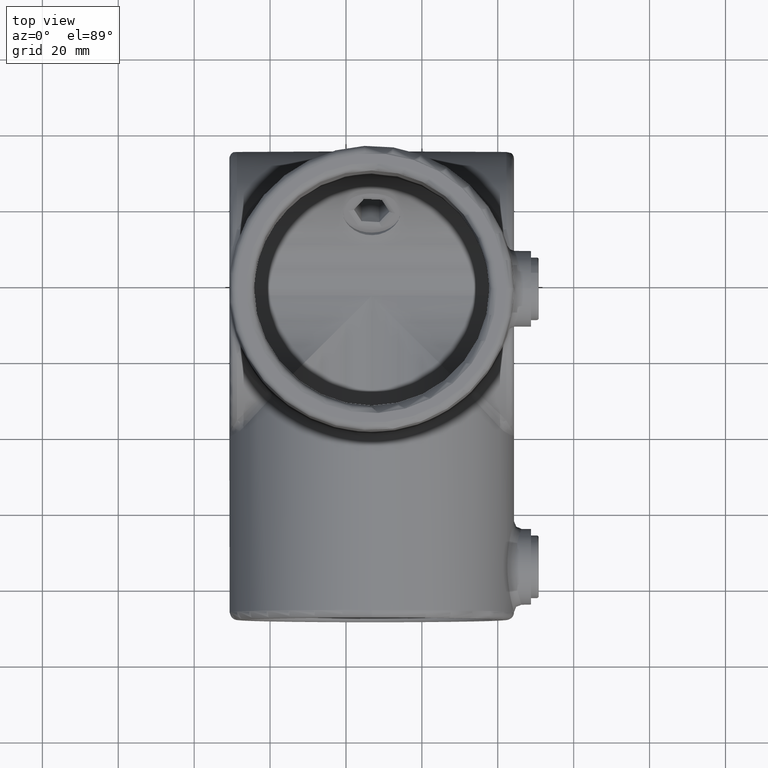
[diagram: clean part render]
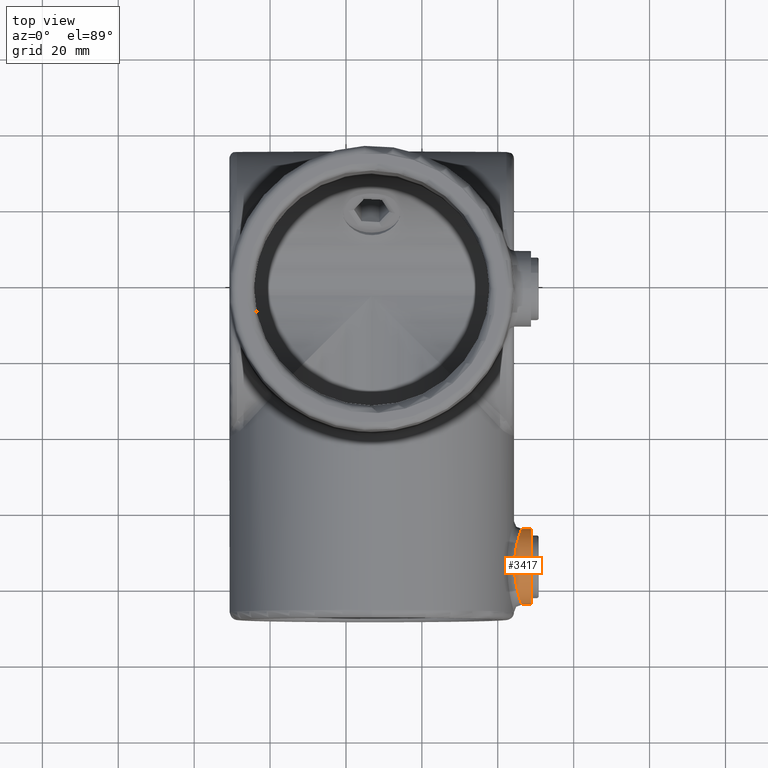
[diagram: same view with one face highlighted and labeled with its STEP entity id]
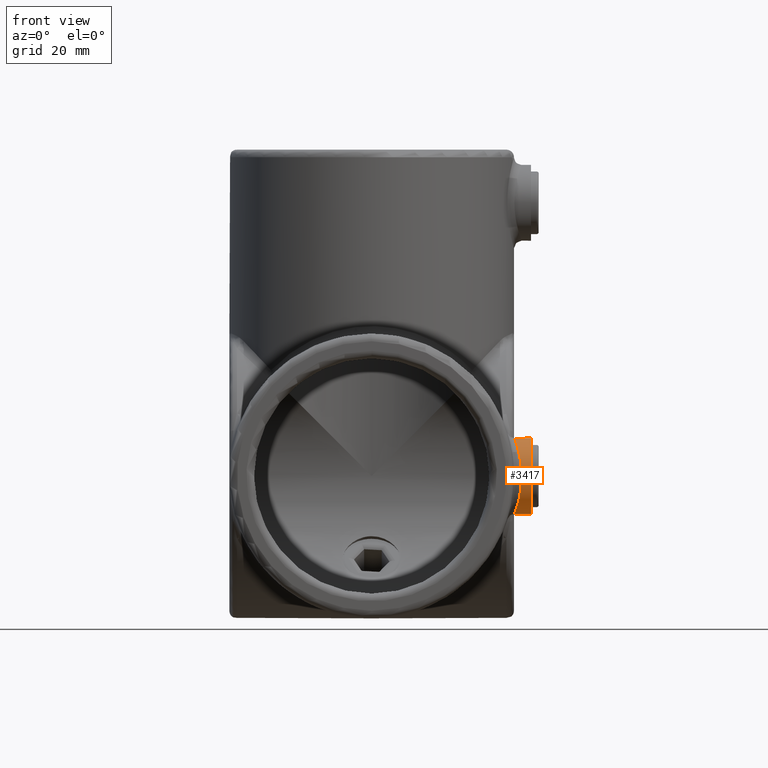
[diagram: same view with one face highlighted and labeled with its STEP entity id]
A machine part, top view. The second image highlights one B-rep face of the part: STEP entity #3417.
A second angle (front view) of the same face is appended — the face is thin or edge-on in the first view.
In plain terms, the highlighted cylindrical surface (bore or boss wall) has radius 10 mm, axis along (-1, -0, -0).
Its self-contained STEP definition (entity closure, byte-faithful):
#63 = CARTESIAN_POINT ( 'NONE',  ( 37.65800378888405930, -70.68680354598365057, 9.935613272041843302 ) ) ;
#121 = CARTESIAN_POINT ( 'NONE',  ( 37.95850891990635745, -67.85615282737181531, 9.106855317723537624 ) ) ;
#161 = CARTESIAN_POINT ( 'NONE',  ( 37.87145886979997300, -75.54806633336220045, -9.355169010651566808 ) ) ;
#216 = CARTESIAN_POINT ( 'NONE',  ( 38.33493186078339221, -78.10799187908575902, -7.944425184108400373 ) ) ;
#694 = CARTESIAN_POINT ( 'NONE',  ( 38.00413709323849787, -67.54507831268904283, -8.976602555335890798 ) ) ;
#963 = CARTESIAN_POINT ( 'NONE',  ( 38.00665111926201689, -67.56112813184304855, 8.966828442534124477 ) ) ;
#1011 = CARTESIAN_POINT ( 'NONE',  ( 39.31528231635761728, -81.48410813540054676, 3.237535629497500622 ) ) ;
#1063 = CARTESIAN_POINT ( 'NONE',  ( 39.04058883765220855, -80.65822309872656604, -5.014154580398188621 ) ) ;
#1346 = CARTESIAN_POINT ( 'NONE',  ( 39.50003877393437790, -82.00010635906116363, 0.3251685596257919419 ) ) ;
#1399 = CARTESIAN_POINT ( 'NONE',  ( 38.69951685119757201, -79.53212531973416333, 6.610163659216975240 ) ) ;
#1432 = CARTESIAN_POINT ( 'NONE',  ( 37.63309713536744283, -72.00000000000000000, -10.00000000000000888 ) ) ;
#1599 = CARTESIAN_POINT ( 'NONE',  ( 37.68308531014445606, -73.64840928387702945, -9.868639242610592888 ) ) ;
#1872 = CARTESIAN_POINT ( 'NONE',  ( 37.73139460903001208, -74.29069149121947646, -9.739611191419324854 ) ) ;
#2226 = CARTESIAN_POINT ( 'NONE',  ( 37.66419712150722887, -73.31708196027251745, 9.918415470324164929 ) ) ;
#2281 = CARTESIAN_POINT ( 'NONE',  ( 39.45260788451472678, -81.86941713962887945, 1.644073465402619894 ) ) ;
#2337 = CARTESIAN_POINT ( 'NONE',  ( 37.75568148744676478, -69.38467477158201291, 9.674759426880635615 ) ) ;
#2612 = CARTESIAN_POINT ( 'NONE',  ( 38.69875200643741664, -64.48143722713736281, 6.601307120509053661 ) ) ;
#3246 = CARTESIAN_POINT ( 'NONE',  ( 38.27842672675478042, -66.16129306150592981, -8.125009305662709735 ) ) ;
#3315 = DIRECTION ( 'NONE',  ( 0.000000000000000000, 0.000000000000000000, -1.000000000000000000 ) ) ;
#3417 = ADVANCED_FACE ( 'NONE', ( #12209, #3870 ), #13208, .T. ) ;
#3501 = CARTESIAN_POINT ( 'NONE',  ( 39.37828222719279836, -62.33867355278091082, -2.601550399859997587 ) ) ;
#3555 = CARTESIAN_POINT ( 'NONE',  ( 39.18729232833557319, -81.10641605953547639, -4.144760211658931937 ) ) ;
#3605 = CARTESIAN_POINT ( 'NONE',  ( 39.38285605385921428, -81.67462561631897699, -2.615776049631676869 ) ) ;
#3626 = AXIS2_PLACEMENT_3D ( 'NONE', #12283, #4478, #3315 ) ;
#3870 = FACE_OUTER_BOUND ( 'NONE', #6961, .T. ) ;
#3896 = CARTESIAN_POINT ( 'NONE',  ( 37.63930415892617276, -72.65798925719050771, 9.983822938607373132 ) ) ;
#3932 = DIRECTION ( 'NONE',  ( 0.000000000000000000, 0.000000000000000000, 1.000000000000000000 ) ) ;
#4081 = VERTEX_POINT ( 'NONE', #4689 ) ;
#4478 = DIRECTION ( 'NONE',  ( 1.000000000000000000, 0.000000000000000000, 0.000000000000000000 ) ) ;
#4619 = CARTESIAN_POINT ( 'NONE',  ( 38.33790911264140533, -65.89714245611295951, -7.928494632223368477 ) ) ;
#4689 = CARTESIAN_POINT ( 'NONE',  ( 42.00000000000000000, -72.00000000000000000, -10.00000000000000888 ) ) ;
#4726 = CARTESIAN_POINT ( 'NONE',  ( 39.47049408862623920, -81.91881267595644545, 1.314180277165022392 ) ) ;
#4772 = CARTESIAN_POINT ( 'NONE',  ( 39.45221470520797880, -62.13167578021565873, 1.650242667337047164 ) ) ;
#4826 = CARTESIAN_POINT ( 'NONE',  ( 37.82672342779473951, -68.75908628288156876, 9.482700614824105756 ) ) ;
#5101 = CARTESIAN_POINT ( 'NONE',  ( 39.38305344329653224, -81.67517213076202154, 2.612380749946293879 ) ) ;
#5156 = CARTESIAN_POINT ( 'NONE',  ( 37.75589422774520187, -74.61616826788508661, 9.674173555260169977 ) ) ;
#5190 = CARTESIAN_POINT ( 'NONE',  ( 38.10867263930811077, -77.02955313785804492, -8.667470884539254072 ) ) ;
#5257 = CARTESIAN_POINT ( 'NONE',  ( 37.66454210801165914, -73.32365072581987420, -9.917506206977716232 ) ) ;
#5790 = CARTESIAN_POINT ( 'NONE',  ( 37.63309713536744283, -72.00000000000000000, -10.00000000000000888 ) ) ;
#5849 = CARTESIAN_POINT ( 'NONE',  ( 37.63309713536742862, -71.33316393436804503, -10.00000000000000711 ) ) ;
#5993 = CARTESIAN_POINT ( 'NONE',  ( 39.49418118312868842, -81.98407552828734879, 0.6543321381816404880 ) ) ;
#6052 = CARTESIAN_POINT ( 'NONE',  ( 37.82665834871831834, -75.24080735458277047, 9.482913220958741007 ) ) ;
#6109 = CARTESIAN_POINT ( 'NONE',  ( 38.63762430105632006, -64.70233793020452140, 6.844688118779793662 ) ) ;
#6373 = CARTESIAN_POINT ( 'NONE',  ( 38.11111707510456625, -77.02247034557581173, 8.653435641171519421 ) ) ;
#6433 = CARTESIAN_POINT ( 'NONE',  ( 39.50006313336467656, -61.99982682166797332, -0.6590261651359309303 ) ) ;
#6468 = CARTESIAN_POINT ( 'NONE',  ( 37.63953787901223791, -72.66668402619124834, -9.983211558342656389 ) ) ;
#6705 = ORIENTED_EDGE ( 'NONE', *, *, #12041, .T. ) ;
#6961 = EDGE_LOOP ( 'NONE', ( #15110 ) ) ;
#6992 = CARTESIAN_POINT ( 'NONE',  ( 37.75548845352856375, -69.38817410086116411, -9.675266714817043479 ) ) ;
#7055 = CARTESIAN_POINT ( 'NONE',  ( 39.14475082308442921, -63.01912063829980326, -4.446322612943427899 ) ) ;
#7154 = CARTESIAN_POINT ( 'NONE',  ( 38.51818126759149408, -65.15489845810674296, -7.297193275137574098 ) ) ;
#7262 = CARTESIAN_POINT ( 'NONE',  ( 38.16510508671016311, -66.70148073635773756, 8.487128216386150115 ) ) ;
#7313 = CARTESIAN_POINT ( 'NONE',  ( 37.95902230308878700, -76.14719394592378876, 9.105377600150976747 ) ) ;
#7357 = CARTESIAN_POINT ( 'NONE',  ( 39.03930899012463129, -80.65422412970569610, 5.021102970912409091 ) ) ;
#7638 = CARTESIAN_POINT ( 'NONE',  ( 39.14282387578209921, -63.02487001783158149, 4.459021526533657465 ) ) ;
#7689 = CARTESIAN_POINT ( 'NONE',  ( 38.81744960315482729, -64.06789054775858006, 6.098170340882746565 ) ) ;
#7690 = EDGE_LOOP ( 'NONE', ( #6705 ) ) ;
#7958 = B_SPLINE_CURVE_WITH_KNOTS ( 'NONE', 3,
 ( #5790, #5849, #13343, #6992, #16014, #694, #10827, #3246, #4619, #12104, #7154, #13397, #16068, #14682, #7055, #9801, #14941, #3501, #13616, #14061, #6433, #11490, #8897, #12711, #4772, #8516, #15337, #7638, #12375, #14889, #7689, #2612, #6109, #12437, #15002, #7262, #10189, #963, #121, #4826, #2337, #63, #10242, #13713, #3896, #2226, #12773, #5156, #6052, #7313, #9907, #6373, #11205, #11096, #8959, #1399, #13666, #16176, #7357, #16231, #8573, #1011, #5101, #2281, #4726, #5993, #1346, #8634, #9859, #3605, #11149, #3555, #16277, #1063, #14002, #15280, #10393, #15370, #216, #5190, #10449, #161, #8996, #12921, #1872, #1599, #5257, #6468, #15817, #1432 ),
 .UNSPECIFIED., .T., .F.,
 ( 4, 2, 2, 2, 2, 2, 2, 2, 2, 2, 2, 2, 2, 2, 2, 2, 2, 2, 2, 2, 2, 2, 2, 2, 2, 2, 2, 2, 2, 2, 2, 2, 2, 2, 2, 2, 2, 2, 2, 2, 2, 2, 2, 2, 4 ),
 ( 0.000000000000000000, 0.001975388875974870562, 0.003950777751949741123, 0.005926166627924610818, 0.006913861065912028751, 0.007901555503899445818, 0.009876944379874309440, 0.01185233325584917306, 0.01284002769383660487, 0.01382772213182404189, 0.01580311100779891592, 0.01679080544578635467, 0.01777849988377379342, 0.01975388875974867439, 0.02172927763572355536, 0.02271697207371099758, 0.02370466651169843980, 0.02568005538767329302, 0.02666774982566071789, 0.02765544426364814276, 0.02963083313962295781, 0.03160622201559776939, 0.03259391645358515610, 0.03358161089157254281, 0.03555699976754735786, 0.03654469420553476539, 0.03753238864352217291, 0.03950777751949694633, 0.04148316639547171975, 0.04247086083345909258, 0.04345855527144647235, 0.04543394414742123188, 0.04642163858540861165, 0.04740933302339599142, 0.04938472189937075096, 0.05136011077534551050, 0.05234780521333287640, 0.05333549965132024923, 0.05531088852729496713, 0.05728627740326968504, 0.05926166627924440294, 0.06024936071723175496, 0.06123705515521911391, 0.06222474959320647286, 0.06321244403119383182 ),
 .UNSPECIFIED. ) ;
#8498 = DIRECTION ( 'NONE',  ( -1.000000000000000000, -0.000000000000000000, -0.000000000000000000 ) ) ;
#8516 = CARTESIAN_POINT ( 'NONE',  ( 39.38291723529702892, -62.32521858838634898, 2.612871927405079564 ) ) ;
#8573 = CARTESIAN_POINT ( 'NONE',  ( 39.18719616204194267, -81.10614024006366662, 4.145563405298825721 ) ) ;
#8584 = EDGE_CURVE ( 'NONE', #4081, #4081, #11182, .T. ) ;
#8634 = CARTESIAN_POINT ( 'NONE',  ( 39.49992187289936396, -81.99978569301224240, -0.6601009261048527144 ) ) ;
#8897 = CARTESIAN_POINT ( 'NONE',  ( 39.49384031647861093, -62.01685997806271899, 0.6679068936157186442 ) ) ;
#8959 = CARTESIAN_POINT ( 'NONE',  ( 38.45554981654636606, -78.60766075891665139, 7.534321119310421366 ) ) ;
#8996 = CARTESIAN_POINT ( 'NONE',  ( 37.83105871487006766, -75.23604746914563179, -9.467615342460122818 ) ) ;
#9401 = AXIS2_PLACEMENT_3D ( 'NONE', #16159, #8498, #3932 ) ;
#9801 = CARTESIAN_POINT ( 'NONE',  ( 39.27227022589222827, -62.64281101815050334, -3.542528627957719944 ) ) ;
#9859 = CARTESIAN_POINT ( 'NONE',  ( 39.47627038274846711, -81.93549475742756272, -1.314004978259447620 ) ) ;
#9907 = CARTESIAN_POINT ( 'NONE',  ( 38.00782262777806864, -76.44578735123548086, 8.963377242740651951 ) ) ;
#10189 = CARTESIAN_POINT ( 'NONE',  ( 38.11006323611307067, -66.98304605304885229, 8.656660376491913667 ) ) ;
#10242 = CARTESIAN_POINT ( 'NONE',  ( 37.63308547156377415, -71.34345380942352222, 10.00003048229560143 ) ) ;
#10393 = CARTESIAN_POINT ( 'NONE',  ( 38.69965143838564359, -79.53232636534859523, -6.609313098378860829 ) ) ;
#10449 = CARTESIAN_POINT ( 'NONE',  ( 38.00451737275268016, -76.45775660866942758, -8.975536402524300073 ) ) ;
#10827 = CARTESIAN_POINT ( 'NONE',  ( 38.10801403554358302, -66.97366686966054772, -8.669548718690537115 ) ) ;
#11096 = CARTESIAN_POINT ( 'NONE',  ( 38.33486341442892353, -78.10757201335017896, 7.944612817602647148 ) ) ;
#11149 = CARTESIAN_POINT ( 'NONE',  ( 39.31444285912738934, -81.48164684353065468, -3.243728684805108120 ) ) ;
#11182 = CIRCLE ( 'NONE', #3626, 10.00000000000000888 ) ;
#11205 = CARTESIAN_POINT ( 'NONE',  ( 38.16558611535306511, -77.30087140380081223, 8.485610734669336352 ) ) ;
#11490 = CARTESIAN_POINT ( 'NONE',  ( 39.49996824526398598, -62.00008710500775067, 0.3334469422705018671 ) ) ;
#12041 = EDGE_CURVE ( 'NONE', #14000, #14000, #7958, .T. ) ;
#12104 = CARTESIAN_POINT ( 'NONE',  ( 38.45766568534921248, -65.39458408627479002, -7.514943641896451254 ) ) ;
#12209 = FACE_OUTER_BOUND ( 'NONE', #7690, .T. ) ;
#12283 = CARTESIAN_POINT ( 'NONE',  ( 42.00000000000000000, -72.00000000000000000, 0.000000000000000000 ) ) ;
#12375 = CARTESIAN_POINT ( 'NONE',  ( 39.04137118130409334, -63.33358785024793747, 5.031162832867320134 ) ) ;
#12437 = CARTESIAN_POINT ( 'NONE',  ( 38.45564867176111790, -65.39209810399420064, 7.533799907480358549 ) ) ;
#12711 = CARTESIAN_POINT ( 'NONE',  ( 39.46993647047124654, -62.08272746934530062, 1.325477223066422683 ) ) ;
#12773 = CARTESIAN_POINT ( 'NONE',  ( 37.68299940913163226, -73.64739237141368733, 9.868869791947002312 ) ) ;
#12921 = CARTESIAN_POINT ( 'NONE',  ( 37.76116164876716397, -74.60821488241008126, -9.659449188360831329 ) ) ;
#13208 = CYLINDRICAL_SURFACE ( 'NONE', #9401, 10.00000000000000888 ) ;
#13343 = CARTESIAN_POINT ( 'NONE',  ( 37.65862112085087432, -70.67765200444550544, -9.933972836127146877 ) ) ;
#13397 = CARTESIAN_POINT ( 'NONE',  ( 38.69912843147164949, -64.46957191954574284, -6.611386554972787266 ) ) ;
#13410 = CARTESIAN_POINT ( 'NONE',  ( 37.63309713536742862, -72.00000000000000000, -10.00000000000000888 ) ) ;
#13616 = CARTESIAN_POINT ( 'NONE',  ( 39.40706554771089287, -62.25775777033718583, -2.279660119651662598 ) ) ;
#13666 = CARTESIAN_POINT ( 'NONE',  ( 38.81971154295523263, -79.94492097848382173, 6.107242877478476828 ) ) ;
#13713 = CARTESIAN_POINT ( 'NONE',  ( 37.63310297345103095, -72.32896927308277668, 9.999984742696764073 ) ) ;
#14000 = VERTEX_POINT ( 'NONE', #13410 ) ;
#14002 = CARTESIAN_POINT ( 'NONE',  ( 38.98661744664863704, -80.48817712091849330, -5.296920686493630903 ) ) ;
#14061 = CARTESIAN_POINT ( 'NONE',  ( 39.47621465045858713, -62.06467942513233282, -1.312227405914209388 ) ) ;
#14682 = CARTESIAN_POINT ( 'NONE',  ( 39.04360621403571230, -63.32643093358075959, -5.019880522350595342 ) ) ;
#14889 = CARTESIAN_POINT ( 'NONE',  ( 38.87518962817554780, -63.87450366749776265, 5.837904941033368544 ) ) ;
#14941 = CARTESIAN_POINT ( 'NONE',  ( 39.31074652641180478, -62.53159307897780650, -3.233970250433021665 ) ) ;
#15002 = CARTESIAN_POINT ( 'NONE',  ( 38.33502671962356345, -65.89153062532551530, 7.944130468020189184 ) ) ;
#15110 = ORIENTED_EDGE ( 'NONE', *, *, #8584, .F. ) ;
#15280 = CARTESIAN_POINT ( 'NONE',  ( 38.81911475794125010, -79.94300092327883078, -6.110222149246522072 ) ) ;
#15337 = CARTESIAN_POINT ( 'NONE',  ( 39.31502778095235584, -62.51657116883260557, 3.240433423956132319 ) ) ;
#15370 = CARTESIAN_POINT ( 'NONE',  ( 38.45805012642350817, -78.61744077948038978, -7.525186883831977980 ) ) ;
#15817 = CARTESIAN_POINT ( 'NONE',  ( 37.63309713536744283, -72.33341803281594196, -10.00000000000001066 ) ) ;
#16014 = CARTESIAN_POINT ( 'NONE',  ( 37.82793227383984203, -68.74928051358750736, -9.479374636398457454 ) ) ;
#16068 = CARTESIAN_POINT ( 'NONE',  ( 38.81932094784900045, -64.05623737174975929, -6.109552857176582030 ) ) ;
#16159 = CARTESIAN_POINT ( 'NONE',  ( 42.00000000000000000, -72.00000000000000000, 0.000000000000000000 ) ) ;
#16176 = CARTESIAN_POINT ( 'NONE',  ( 38.98606595483776260, -80.48639329771171447, 5.299639141136806231 ) ) ;
#16231 = CARTESIAN_POINT ( 'NONE',  ( 39.13982159787816784, -80.96395736256081932, 4.444607826780432092 ) ) ;
#16277 = CARTESIAN_POINT ( 'NONE',  ( 39.14076865888799261, -80.96681945444949235, -4.438774859660795435 ) ) ;